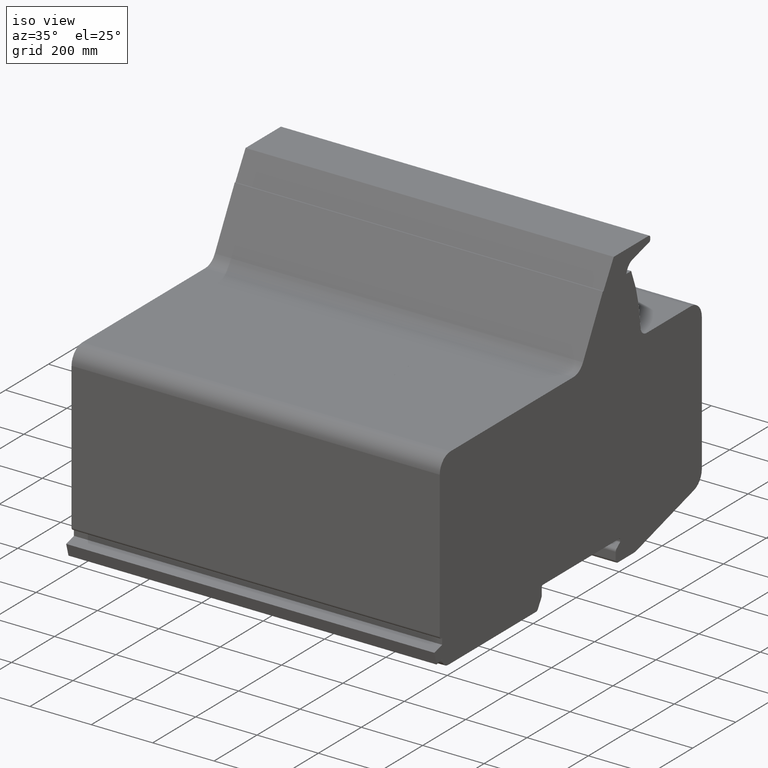
[diagram: clean part render]
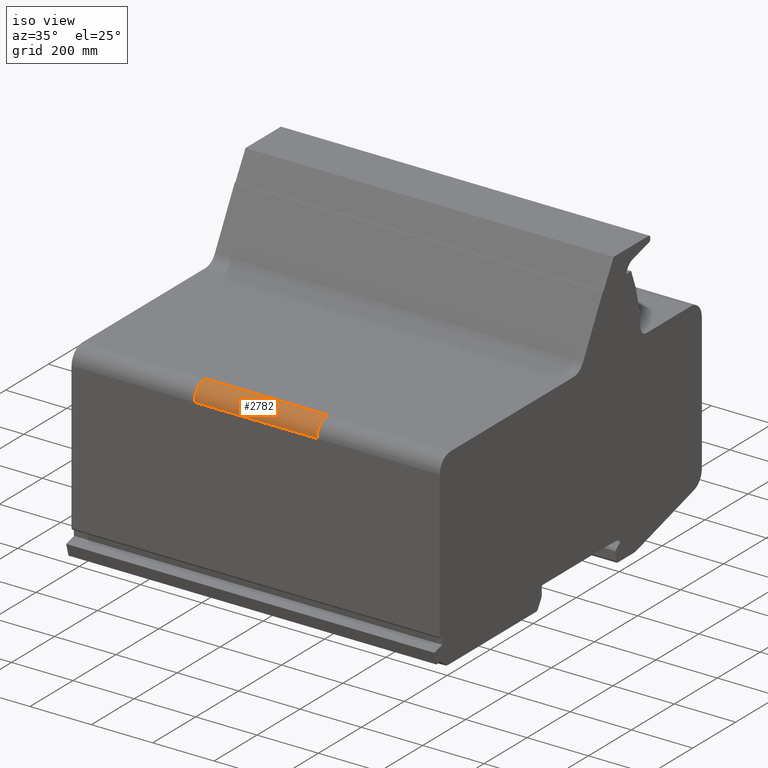
[diagram: same view with one face highlighted and labeled with its STEP entity id]
A machine part, iso view. The second image highlights one B-rep face of the part: STEP entity #2782.
In plain terms, the highlighted cylindrical surface (edge-blend (fillet) strip) has radius 50 mm, axis along (1, 0, 0).
Its self-contained STEP definition (entity closure, byte-faithful):
#2724=CARTESIAN_POINT('',(800.0,-835.00000000000011,507.50000000000023));
#2725=VERTEX_POINT('',#2724);
#2732=CARTESIAN_POINT('',(400.0,-835.00000000000011,507.50000000000023));
#2733=VERTEX_POINT('',#2732);
#2734=CARTESIAN_POINT('',(400.0,-835.00000000000011,507.50000000000023));
#2735=DIRECTION('',(1.0,0.0,0.0));
#2736=VECTOR('',#2735,400.0);
#2737=LINE('',#2734,#2736);
#2738=EDGE_CURVE('',#2733,#2725,#2737,.T.);
#2750=CARTESIAN_POINT('',(400.0,-785.00000000000023,507.50000000000023));
#2751=DIRECTION('',(1.0,0.0,0.0));
#2752=DIRECTION('',(0.0,-0.707106781186546,0.707106781186549));
#2753=AXIS2_PLACEMENT_3D('',#2750,#2751,#2752);
#2754=CYLINDRICAL_SURFACE('',#2753,49.999999999999808);
#2755=CARTESIAN_POINT('',(800.0,-785.00000000000011,557.5));
#2756=VERTEX_POINT('',#2755);
#2757=CARTESIAN_POINT('',(800.0,-785.00000000000023,507.50000000000023));
#2758=DIRECTION('',(-1.0,0.0,0.0));
#2759=DIRECTION('',(0.0,-0.707106781186546,0.707106781186549));
#2760=AXIS2_PLACEMENT_3D('',#2757,#2758,#2759);
#2761=CIRCLE('',#2760,49.999999999999808);
#2762=EDGE_CURVE('',#2725,#2756,#2761,.T.);
#2763=ORIENTED_EDGE('',*,*,#2762,.T.);
#2764=CARTESIAN_POINT('',(400.0,-785.00000000000011,557.5));
#2765=VERTEX_POINT('',#2764);
#2766=CARTESIAN_POINT('',(400.0,-785.00000000000011,557.5));
#2767=DIRECTION('',(1.0,0.0,0.0));
#2768=VECTOR('',#2767,400.0);
#2769=LINE('',#2766,#2768);
#2770=EDGE_CURVE('',#2765,#2756,#2769,.T.);
#2771=ORIENTED_EDGE('',*,*,#2770,.F.);
#2772=CARTESIAN_POINT('',(400.0,-785.00000000000023,507.50000000000023));
#2773=DIRECTION('',(1.0,0.0,0.0));
#2774=DIRECTION('',(0.0,-0.707106781186546,0.707106781186549));
#2775=AXIS2_PLACEMENT_3D('',#2772,#2773,#2774);
#2776=CIRCLE('',#2775,49.999999999999808);
#2777=EDGE_CURVE('',#2765,#2733,#2776,.T.);
#2778=ORIENTED_EDGE('',*,*,#2777,.T.);
#2779=ORIENTED_EDGE('',*,*,#2738,.T.);
#2780=EDGE_LOOP('',(#2763,#2771,#2778,#2779));
#2781=FACE_OUTER_BOUND('',#2780,.T.);
#2782=ADVANCED_FACE('',(#2781),#2754,.T.);